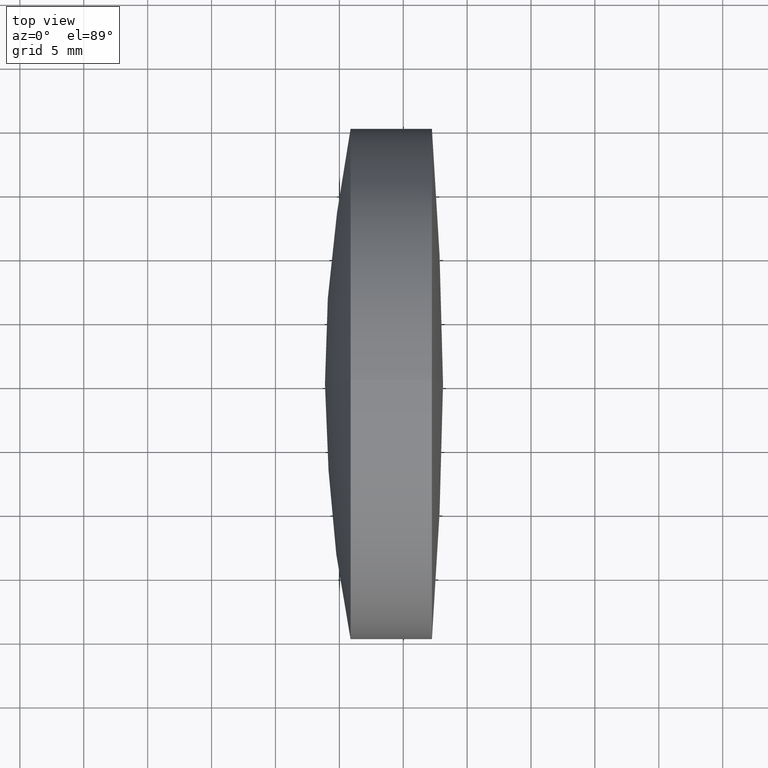
[diagram: clean part render]
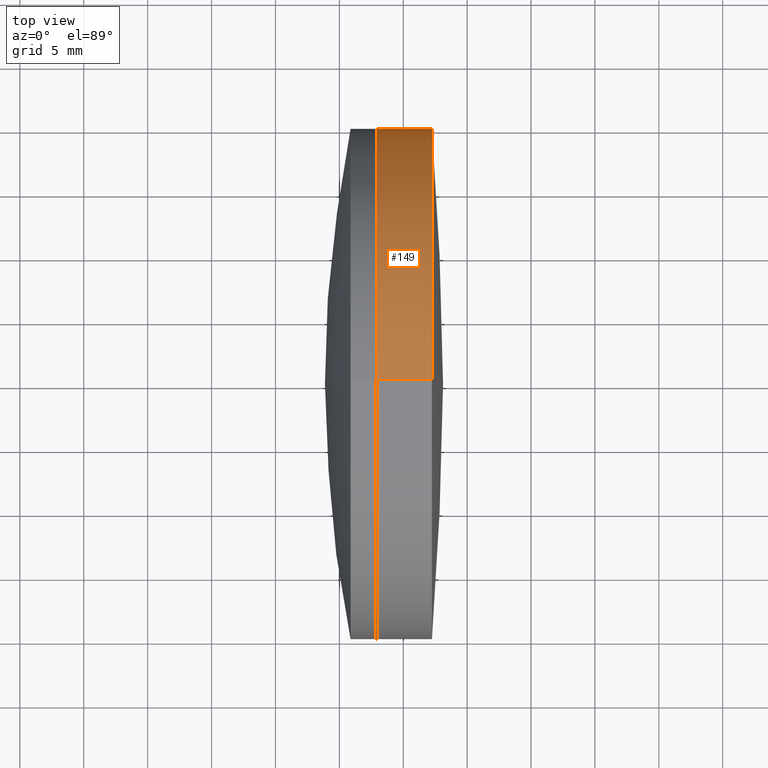
[diagram: same view with one face highlighted and labeled with its STEP entity id]
A machine part, top view. The second image highlights one B-rep face of the part: STEP entity #149.
In plain terms, the highlighted cylindrical surface (partial cylindrical patch) has radius 20 mm, axis along (-1, -0, -0).
Its self-contained STEP definition (entity closure, byte-faithful):
#7 = EDGE_LOOP ( 'NONE', ( #161, #152, #173, #55 ) ) ;
#13 = LINE ( 'NONE', #39, #203 ) ;
#30 = FACE_OUTER_BOUND ( 'NONE', #7, .T. ) ;
#39 = CARTESIAN_POINT ( 'NONE',  ( -0.5519199926577972300, 2.449293598294708100E-015, -20.00000000000001100 ) ) ;
#51 = DIRECTION ( 'NONE',  ( 0.0000000000000000000, 0.0000000000000000000, 1.000000000000000000 ) ) ;
#55 = ORIENTED_EDGE ( 'NONE', *, *, #324, .F. ) ;
#62 = DIRECTION ( 'NONE',  ( -1.000000000000000000, -0.0000000000000000000, -0.0000000000000000000 ) ) ;
#63 = EDGE_CURVE ( 'NONE', #69, #242, #13, .T. ) ;
#65 = DIRECTION ( 'NONE',  ( -1.000000000000000000, -0.0000000000000000000, -0.0000000000000000000 ) ) ;
#67 = VECTOR ( 'NONE', #321, 1000.000000000000000 ) ;
#68 = LINE ( 'NONE', #159, #67 ) ;
#69 = VERTEX_POINT ( 'NONE', #175 ) ;
#79 = CARTESIAN_POINT ( 'NONE',  ( 287.2444201635094600, 0.0000000000000000000, 0.0000000000000000000 ) ) ;
#94 = VERTEX_POINT ( 'NONE', #128 ) ;
#98 = EDGE_CURVE ( 'NONE', #94, #242, #192, .T. ) ;
#105 = CYLINDRICAL_SURFACE ( 'NONE', #276, 20.00000000000001100 ) ;
#125 = DIRECTION ( 'NONE',  ( -1.000000000000000000, -0.0000000000000000000, -0.0000000000000000000 ) ) ;
#126 = DIRECTION ( 'NONE',  ( 0.0000000000000000000, 0.0000000000000000000, 1.000000000000000000 ) ) ;
#128 = CARTESIAN_POINT ( 'NONE',  ( 282.9165680011502700, 0.0000000000000000000, 20.00000000000003200 ) ) ;
#142 = CARTESIAN_POINT ( 'NONE',  ( 282.9165680011502700, 2.449293598294710100E-015, -20.00000000000002500 ) ) ;
#149 = ADVANCED_FACE ( 'NONE', ( #30 ), #105, .T. ) ;
#152 = ORIENTED_EDGE ( 'NONE', *, *, #63, .T. ) ;
#159 = CARTESIAN_POINT ( 'NONE',  ( -0.5519199926577972300, 0.0000000000000000000, 20.00000000000001100 ) ) ;
#161 = ORIENTED_EDGE ( 'NONE', *, *, #313, .T. ) ;
#173 = ORIENTED_EDGE ( 'NONE', *, *, #98, .F. ) ;
#175 = CARTESIAN_POINT ( 'NONE',  ( 287.2444201635094600, 2.449293598294706500E-015, -19.99999999999998900 ) ) ;
#192 = CIRCLE ( 'NONE', #261, 20.00000000000003200 ) ;
#196 = CARTESIAN_POINT ( 'NONE',  ( 287.2444201635094600, 0.0000000000000000000, 19.99999999999998900 ) ) ;
#197 = AXIS2_PLACEMENT_3D ( 'NONE', #79, #248, #51 ) ;
#198 = CARTESIAN_POINT ( 'NONE',  ( -0.5519199926577972300, 0.0000000000000000000, 0.0000000000000000000 ) ) ;
#203 = VECTOR ( 'NONE', #65, 1000.000000000000000 ) ;
#229 = DIRECTION ( 'NONE',  ( 0.0000000000000000000, 0.0000000000000000000, 1.000000000000000000 ) ) ;
#241 = VERTEX_POINT ( 'NONE', #196 ) ;
#242 = VERTEX_POINT ( 'NONE', #142 ) ;
#248 = DIRECTION ( 'NONE',  ( -1.000000000000000000, -0.0000000000000000000, -0.0000000000000000000 ) ) ;
#261 = AXIS2_PLACEMENT_3D ( 'NONE', #262, #62, #229 ) ;
#262 = CARTESIAN_POINT ( 'NONE',  ( 282.9165680011502700, 0.0000000000000000000, 0.0000000000000000000 ) ) ;
#276 = AXIS2_PLACEMENT_3D ( 'NONE', #198, #125, #126 ) ;
#313 = EDGE_CURVE ( 'NONE', #241, #69, #342, .T. ) ;
#321 = DIRECTION ( 'NONE',  ( -1.000000000000000000, -0.0000000000000000000, -0.0000000000000000000 ) ) ;
#324 = EDGE_CURVE ( 'NONE', #241, #94, #68, .T. ) ;
#342 = CIRCLE ( 'NONE', #197, 19.99999999999998900 ) ;